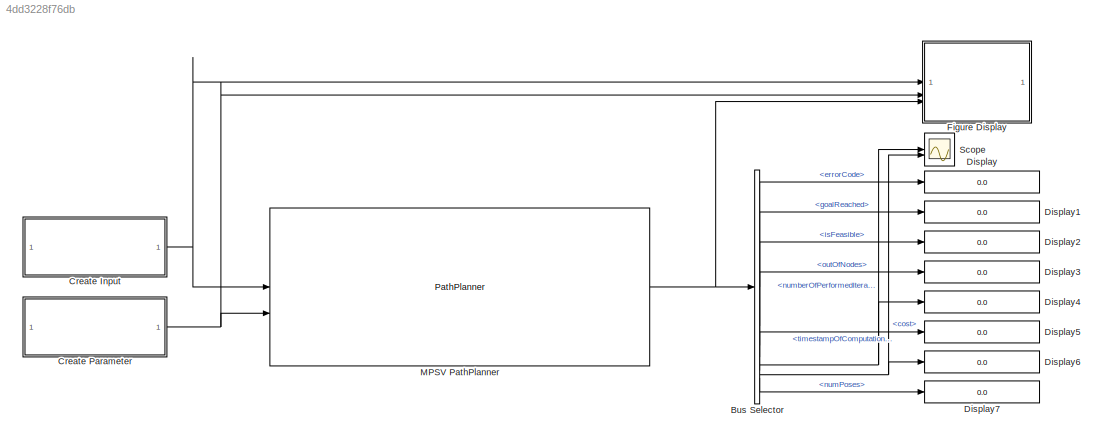
MODEL slx_4dd3228f76db
KIND model
CONFIG AbsTol = auto
CONFIG EnableMultiTasking = on
CONFIG FixedStep = 1
CONFIG MaxStep = auto
CONFIG MinStep = auto
CONFIG RelTol = 1e-3
CONFIG SampleTimeConstraint = Unconstrained
CONFIG SolverName = FixedStepAuto
CONFIG StartTime = 0.0
CONFIG StopTime = 10
BLOCK [BusSelector] Bus Selector
  OutputSignals = errorCode,goalReached,isFeasible,outOfNodes,numberOfPerformedIterations,timestampOfComputationUTC,cost,numPoses
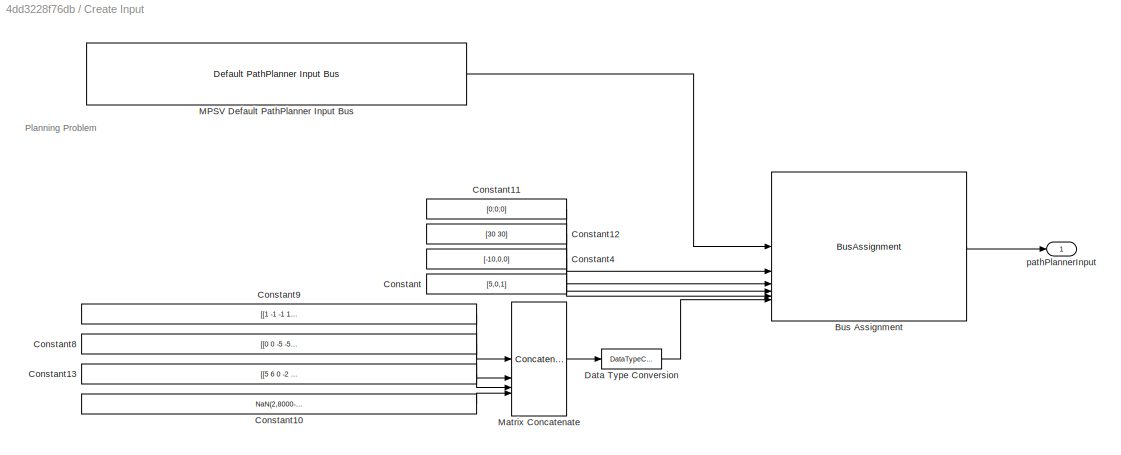
BLOCK [SubSystem] Create Input
BLOCK [BusAssignment] Create Input/Bus Assignment
  AssignedSignals = samplingBoxCenterPose,samplingBoxDimension,initialPose,finalPose,verticesStaticObstacles
BLOCK [Constant] Create Input/Constant
  Value = [5,0,1]
BLOCK [Constant] Create Input/Constant10
  Value = NaN(2,8000-5-5-6)
BLOCK [Constant] Create Input/Constant11
  Value = [0;0;0]
BLOCK [Constant] Create Input/Constant12
  Value = [30 30]
BLOCK [Constant] Create Input/Constant13
  Value = [[5 6 0 -2 -1; 6 15 16 10 7], NaN(2,1)]
BLOCK [Constant] Create Input/Constant4
  Value = [-10,0,0]
BLOCK [Constant] Create Input/Constant8
  Value = [[0 0 -5 -5; -20 -9 -7 -20], NaN(2,1)]
BLOCK [Constant] Create Input/Constant9
  Value = [[1 -1 -1 1; 1 1 -1 -1], NaN(2,1)]
BLOCK [DataTypeConversion] Create Input/Data Type Conversion
  OutDataTypeStr = single
  RndMeth = Floor
  SaturateOnIntegerOverflow = off
BLOCK [Reference] Create Input/MPSV Default PathPlanner Input Bus  REF=MPSV/Default PathPlanner Input Bus
  SourceBlock = MPSV/Default PathPlanner Input Bus
  SourceProductName = MPSV - Motion Planner for Surface Vehicles
BLOCK [Concatenate] Create Input/Matrix Concatenate
  ConcatenateDimension = 2
  Mode = Multidimensional array
  NumInputs = 4
BLOCK [Outport] Create Input/pathPlannerInput
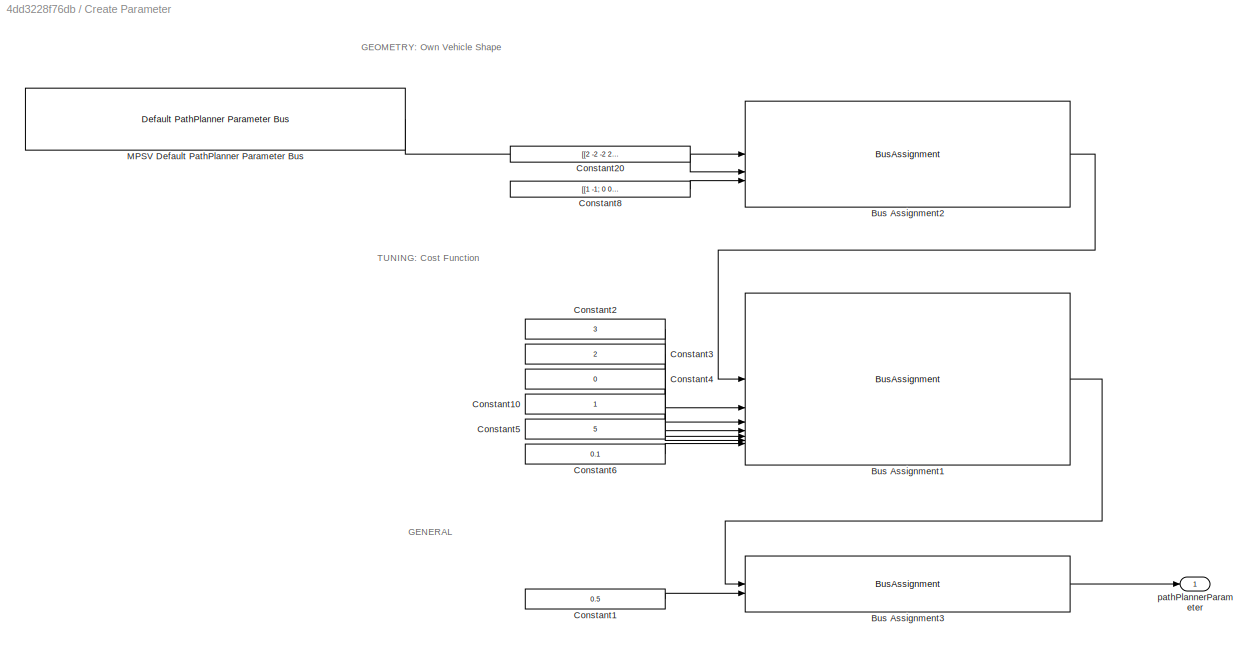
BLOCK [SubSystem] Create Parameter
BLOCK [BusAssignment] Create Parameter/Bus Assignment1
  AssignedSignals = metric.weightPsi,metric.weightSway,metric.weightReverseScale,metric.weightReverseDecay,costMap.distanceScale,costMap.distanceDecay
BLOCK [BusAssignment] Create Parameter/Bus Assignment2
  AssignedSignals = geometry.verticesVehicleShape,geometry.skeletalPoints
BLOCK [BusAssignment] Create Parameter/Bus Assignment3
  AssignedSignals = pathPlanner.maxComputationTime
BLOCK [Constant] Create Parameter/Constant1
  Value = 0.5
BLOCK [Constant] Create Parameter/Constant10
BLOCK [Constant] Create Parameter/Constant2
  Value = 3
BLOCK [Constant] Create Parameter/Constant20
  OutDataTypeStr = single
  Value = [[2 -2 -2 2; 1 1 -1 -1], NaN(2,96)]
BLOCK [Constant] Create Parameter/Constant3
  Value = 2
BLOCK [Constant] Create Parameter/Constant4
  Value = 0
BLOCK [Constant] Create Parameter/Constant5
  Value = 5
BLOCK [Constant] Create Parameter/Constant6
  Value = 0.1
BLOCK [Constant] Create Parameter/Constant8
  OutDataTypeStr = single
  Value = [[1 -1; 0 0], NaN(2,8)]
BLOCK [Reference] Create Parameter/MPSV Default PathPlanner Parameter Bus  REF=MPSV/Default PathPlanner Parameter Bus
  SourceBlock = MPSV/Default PathPlanner Parameter Bus
  SourceProductName = MPSV - Motion Planner for Surface Vehicles
BLOCK [Outport] Create Parameter/pathPlannerParameter
BLOCK [Display] Display
  Decimation = 1
  Format = long
BLOCK [Display] Display1
  Decimation = 1
  Format = long
BLOCK [Display] Display2
  Decimation = 1
  Format = long
BLOCK [Display] Display3
  Decimation = 1
  Format = long
BLOCK [Display] Display4
  Decimation = 1
  Format = long
BLOCK [Display] Display5
  Decimation = 1
  Format = long
BLOCK [Display] Display6
  Decimation = 1
  Format = long
BLOCK [Display] Display7
  Decimation = 1
  Format = long
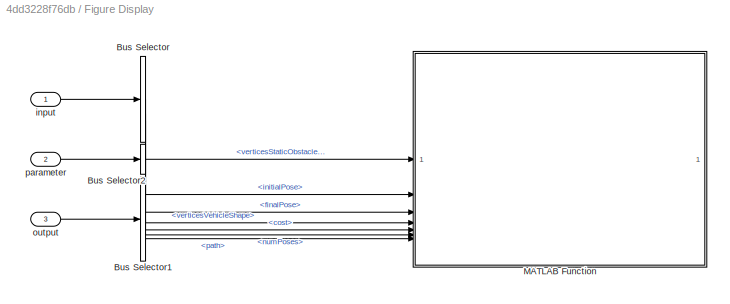
BLOCK [SubSystem] Figure Display
BLOCK [BusSelector] Figure Display/Bus Selector
  OutputSignals = verticesStaticObstacles,initialPose,finalPose
BLOCK [BusSelector] Figure Display/Bus Selector1
  OutputSignals = cost,numPoses,path
BLOCK [BusSelector] Figure Display/Bus Selector2
  OutputSignals = geometry.verticesVehicleShape
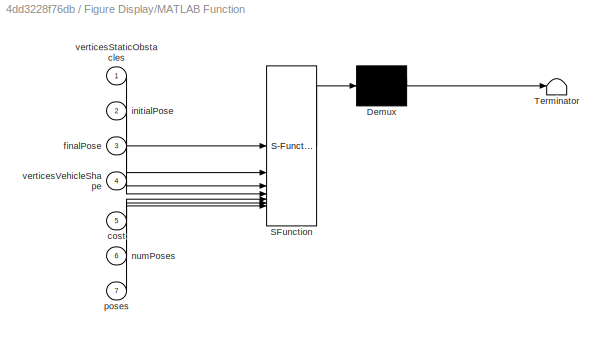
BLOCK [SubSystem] Figure Display/MATLAB Function
  ErrorFcn = Stateflow.Translate.translate
  LibrarySourceBlock = simulink/User-Defined\nFunctions/MATLAB Function
  PermitHierarchicalResolution = ExplicitOnly
  SFBlockType = MATLAB Function
  TreatAsAtomicUnit = on
BLOCK [Demux] Figure Display/MATLAB Function/ Demux 
  Outputs = 1
BLOCK [S-Function] Figure Display/MATLAB Function/ SFunction 
  EnableBusSupport = off
  FunctionName = sf_sfun
  PortCounts = [7 1]
  SFcnIsStateOwnerBlock = off
  SFunctionDeploymentMode = off
  Tag = Stateflow S-Function 2
BLOCK [Terminator] Figure Display/MATLAB Function/ Terminator 
BLOCK [Inport] Figure Display/MATLAB Function/cost
  Port = 5
BLOCK [Inport] Figure Display/MATLAB Function/finalPose
  Port = 3
BLOCK [Inport] Figure Display/MATLAB Function/initialPose
  Port = 2
BLOCK [Inport] Figure Display/MATLAB Function/numPoses
  Port = 6
BLOCK [Inport] Figure Display/MATLAB Function/poses
  Port = 7
BLOCK [Inport] Figure Display/MATLAB Function/verticesStaticObstacles
BLOCK [Inport] Figure Display/MATLAB Function/verticesVehicleShape
  Port = 4
BLOCK [Inport] Figure Display/input
BLOCK [Inport] Figure Display/output
  Port = 3
BLOCK [Inport] Figure Display/parameter
  Port = 2
BLOCK [Reference] MPSV PathPlanner  REF=MPSV/PathPlanner
  SourceBlock = MPSV/PathPlanner
  SourceProductName = MPSV - Motion Planner for Surface Vehicles
BLOCK [Scope] Scope
  ActiveDisplayYMaximum = 20852
  ActiveDisplayYMinimum = 19472
  Floating = off
  GraphicalSettings = {"GraphicalSettings":{"LegacySettings":true,"Style":{"AxesScalingProperties":{"AxesScaling":"Auto"},"Style":{"AxesColor":"[0 0 0]","ChannelNames":["",""],"ColorOrder":"[1 1 0.0666666666666667;0.0745098039215686 0.623529411764706 1;1 0.411764705882353 0.16078431372549;0.392156862745098 0.831372549019608 0.0745098039215686;0.717647058823529 0.274509803921569 1;0.0588235294117647 1 1;1 0.074509803921...<+479ch>
  LayoutDimensionsString = [2 1]
  MultipleDisplayCache = [{"MaxYLimMag":20852,"MaxYLimReal":20852,"MinYLimMag":19472,"MinYLimReal":19472,"PlotAsMagnitudePhase":false,"ShowGrid":true,"ShowLegend":false,"Title":"%<SignalLabel>","YLabel":""},{"MaxYLimMag":14331.625,"MaxYLimReal":43.07367,"MinYLimMag":13905.375,"MinYLimReal":41.38397,"PlotAsMagnitudePhase":false,"ShowGrid":true,"ShowLegend":false,"Title":"%<SignalLabel>","YLabel":""}]
  NumInputPorts = 2
  WasSavedAsWebScope = on
ANNOTATION Create Input: Planning Problem
ANNOTATION Create Parameter: GENERAL
ANNOTATION Create Parameter: GEOMETRY: Own Vehicle Shape
ANNOTATION Create Parameter: TUNING: Cost Function
LINE Bus Selector:1 -> Display:1
LINE Bus Selector:2 -> Display1:1
LINE Bus Selector:3 -> Display2:1
LINE Bus Selector:4 -> Display3:1
NET Bus Selector:5 -> Display4:1, Scope:1
LINE Bus Selector:6 -> Display5:1
NET Bus Selector:7 -> Display6:1, Scope:2
LINE Bus Selector:8 -> Display7:1
LINE Create Input/Bus Assignment:1 -> Create Input/pathPlannerInput:1
LINE Create Input/Constant10:1 -> Create Input/Matrix Concatenate:4
LINE Create Input/Constant11:1 -> Create Input/Bus Assignment:2
LINE Create Input/Constant12:1 -> Create Input/Bus Assignment:3
LINE Create Input/Constant13:1 -> Create Input/Matrix Concatenate:3
LINE Create Input/Constant4:1 -> Create Input/Bus Assignment:4
LINE Create Input/Constant8:1 -> Create Input/Matrix Concatenate:2
LINE Create Input/Constant9:1 -> Create Input/Matrix Concatenate:1
LINE Create Input/Constant:1 -> Create Input/Bus Assignment:5
LINE Create Input/Data Type Conversion:1 -> Create Input/Bus Assignment:6
LINE Create Input/MPSV Default PathPlanner Input Bus:1 -> Create Input/Bus Assignment:1
LINE Create Input/Matrix Concatenate:1 -> Create Input/Data Type Conversion:1
NET Create Input:1 -> Figure Display:1, MPSV PathPlanner:1
LINE Create Parameter/Bus Assignment1:1 -> Create Parameter/Bus Assignment3:1
LINE Create Parameter/Bus Assignment2:1 -> Create Parameter/Bus Assignment1:1
LINE Create Parameter/Bus Assignment3:1 -> Create Parameter/pathPlannerParameter:1
LINE Create Parameter/Constant10:1 -> Create Parameter/Bus Assignment1:5
LINE Create Parameter/Constant1:1 -> Create Parameter/Bus Assignment3:2
LINE Create Parameter/Constant20:1 -> Create Parameter/Bus Assignment2:2
LINE Create Parameter/Constant2:1 -> Create Parameter/Bus Assignment1:2
LINE Create Parameter/Constant3:1 -> Create Parameter/Bus Assignment1:3
LINE Create Parameter/Constant4:1 -> Create Parameter/Bus Assignment1:4
LINE Create Parameter/Constant5:1 -> Create Parameter/Bus Assignment1:6
LINE Create Parameter/Constant6:1 -> Create Parameter/Bus Assignment1:7
LINE Create Parameter/Constant8:1 -> Create Parameter/Bus Assignment2:3
LINE Create Parameter/MPSV Default PathPlanner Parameter Bus:1 -> Create Parameter/Bus Assignment2:1
NET Create Parameter:1 -> Figure Display:2, MPSV PathPlanner:2
LINE Figure Display/Bus Selector1:1 -> Figure Display/MATLAB Function:5
LINE Figure Display/Bus Selector1:2 -> Figure Display/MATLAB Function:6
LINE Figure Display/Bus Selector1:3 -> Figure Display/MATLAB Function:7
LINE Figure Display/Bus Selector2:1 -> Figure Display/MATLAB Function:4
LINE Figure Display/Bus Selector:1 -> Figure Display/MATLAB Function:1
LINE Figure Display/Bus Selector:2 -> Figure Display/MATLAB Function:2
LINE Figure Display/Bus Selector:3 -> Figure Display/MATLAB Function:3
LINE Figure Display/input:1 -> Figure Display/Bus Selector:1
LINE Figure Display/output:1 -> Figure Display/Bus Selector1:1
LINE Figure Display/parameter:1 -> Figure Display/Bus Selector2:1
NET MPSV PathPlanner:1 -> Bus Selector:1, Figure Display:3
note: NET lines group one-source signal fan-out (src -> all destinations, sorted); 1:1 wires keep LINE
CHART Figure Display/MATLAB Function states=1 transitions=1
  STATE_LABEL 'eML_blk_kernel()'
  STATE_LABEL 'SCRIPT:\nfunction FigureDisplay(verticesStaticObstacles, initialPose, finalPose, verticesVehicleShape, cost, numPoses, poses)\n    persistent f;\n    if(isempty(f))\n        f = figure(42);\n    end\n\n    clf;\n    hold on;\n    PlotPath(numPoses, poses, verticesVehicleShape, [0 0.3 0.5]);\n    PlotVehicleShape(initialPose, verticesVehicleShape, [0.9 0 0]);\n    PlotVehicleShape(finalPose, verticesVehicleSh...<+1915ch>'
CHART  states=0 transitions=0
